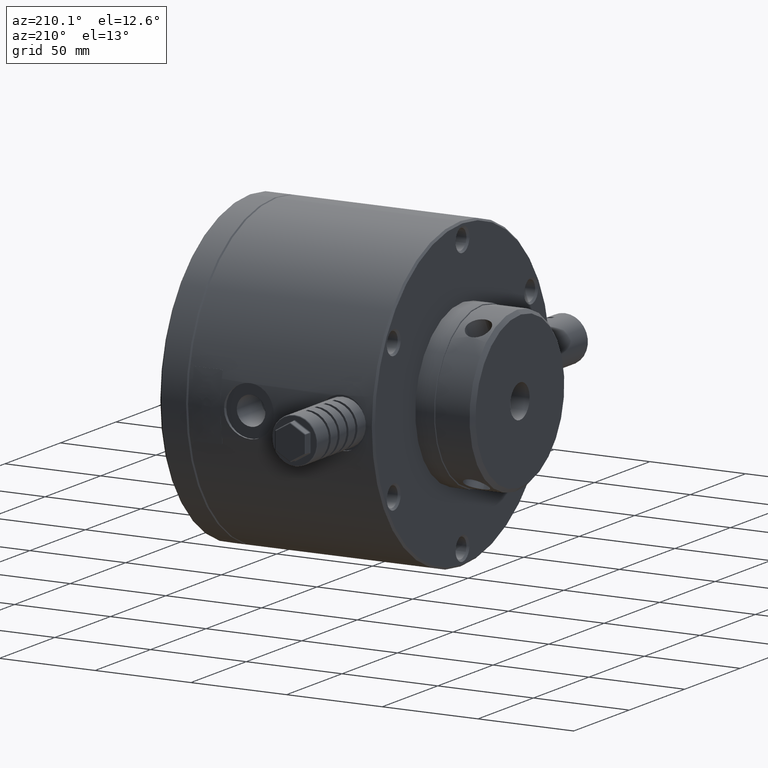
[diagram: clean part render]
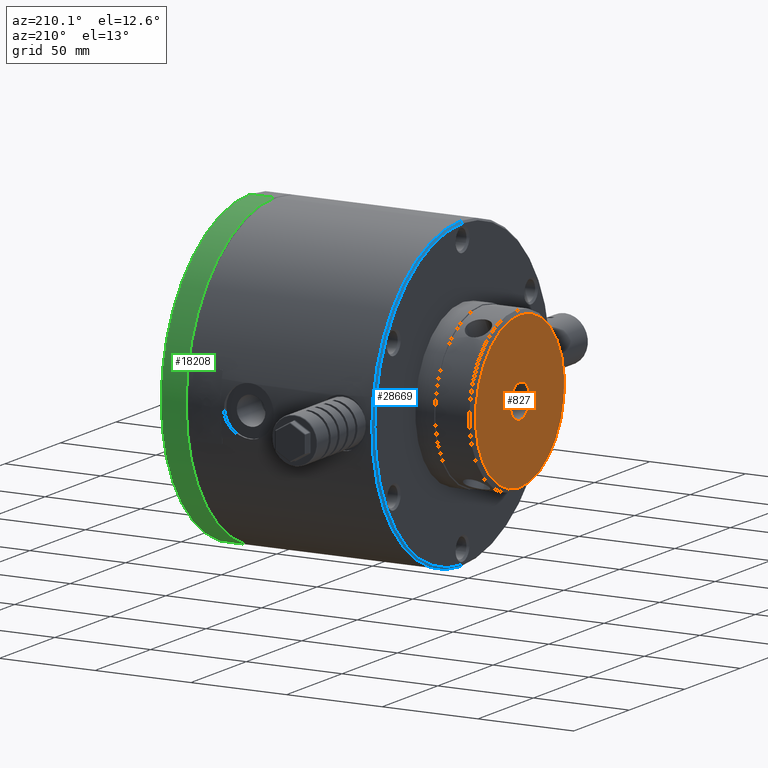
[diagram: same view with three faces highlighted in distinct colors, each labeled with its STEP entity id]
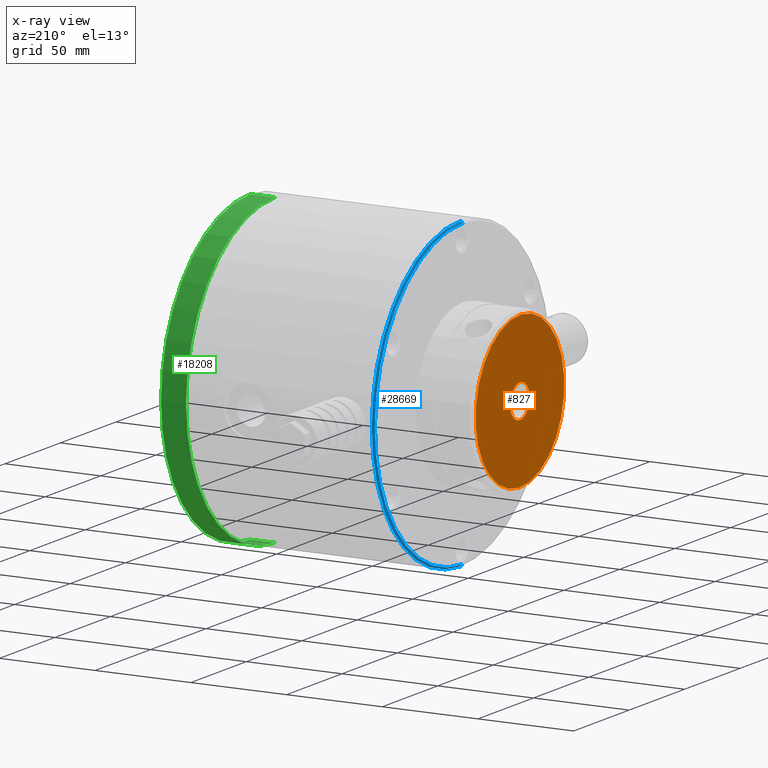
[diagram: x-ray of the same camera — body ghosted, the three highlighted faces saturated]
A machine part, auxiliary view with three faces highlighted in distinct colors.
The next image is the same camera in x-ray (body ghosted, the three faces saturated) — at least one of them is partly hidden behind the body in this view.
Their STEP definitions:

[orange] entity #827 — the highlighted planar face has unit normal (-1, 0, 0).
#732 = DIRECTION ( 'NONE',  ( -1.000000000000000000, 0.0000000000000000000, 0.0000000000000000000 ) ) ;
#827 = ADVANCED_FACE ( 'NONE', ( #27871, #27100 ), #28862, .T. ) ;
#1956 = DIRECTION ( 'NONE',  ( 0.0000000000000000000, 0.02344010353310653800, -0.9997252430274816700 ) ) ;
#1974 = CARTESIAN_POINT ( 'NONE',  ( -127.0000000000000000, -0.9376041413242524000, 39.98900972109924400 ) ) ;
#4192 = AXIS2_PLACEMENT_3D ( 'NONE', #26082, #21344, #1956 ) ;
#4431 = VERTEX_POINT ( 'NONE', #31360 ) ;
#5055 = AXIS2_PLACEMENT_3D ( 'NONE', #12788, #732, #10453 ) ;
#6025 = CIRCLE ( 'NONE', #16751, 40.00000000000002100 ) ;
#6111 = EDGE_LOOP ( 'NONE', ( #10679, #31324 ) ) ;
#8759 = ORIENTED_EDGE ( 'NONE', *, *, #11207, .F. ) ;
#8873 = CARTESIAN_POINT ( 'NONE',  ( -127.0000000000000000, 0.9376041413242651700, -39.98900972109924400 ) ) ;
#9210 = VERTEX_POINT ( 'NONE', #16268 ) ;
#10181 = CIRCLE ( 'NONE', #4192, 8.750000000000005300 ) ;
#10453 = DIRECTION ( 'NONE',  ( 0.0000000000000000000, 0.02344010353310653800, -0.9997252430274815600 ) ) ;
#10679 = ORIENTED_EDGE ( 'NONE', *, *, #11679, .T. ) ;
#11207 = EDGE_CURVE ( 'NONE', #9210, #4431, #13268, .T. ) ;
#11679 = EDGE_CURVE ( 'NONE', #31302, #20930, #6025, .T. ) ;
#11952 = EDGE_CURVE ( 'NONE', #4431, #9210, #10181, .T. ) ;
#12788 = CARTESIAN_POINT ( 'NONE',  ( -127.0000000000000000, -41.98846020715420500, -0.9844843483904749400 ) ) ;
#13060 = CARTESIAN_POINT ( 'NONE',  ( -127.0000000000000000, 8.935508208782470700E-015, 1.060877338640685800E-015 ) ) ;
#13268 = CIRCLE ( 'NONE', #18602, 8.750000000000005300 ) ;
#14494 = DIRECTION ( 'NONE',  ( 0.0000000000000000000, 0.02344010353310653500, -0.9997252430274816700 ) ) ;
#14945 = CIRCLE ( 'NONE', #17272, 40.00000000000002100 ) ;
#15085 = ORIENTED_EDGE ( 'NONE', *, *, #11952, .F. ) ;
#16268 = CARTESIAN_POINT ( 'NONE',  ( -127.0000000000000000, 0.2051009059146912700, -8.747595876490468200 ) ) ;
#16751 = AXIS2_PLACEMENT_3D ( 'NONE', #24863, #28347, #14494 ) ;
#17272 = AXIS2_PLACEMENT_3D ( 'NONE', #13060, #27421, #22685 ) ;
#18602 = AXIS2_PLACEMENT_3D ( 'NONE', #18836, #30126, #18942 ) ;
#18836 = CARTESIAN_POINT ( 'NONE',  ( -127.0000000000000000, 8.935508208782470700E-015, 1.060877338640685800E-015 ) ) ;
#18942 = DIRECTION ( 'NONE',  ( 0.0000000000000000000, 0.02344010353310653800, -0.9997252430274816700 ) ) ;
#19936 = EDGE_CURVE ( 'NONE', #20930, #31302, #14945, .T. ) ;
#20930 = VERTEX_POINT ( 'NONE', #8873 ) ;
#21344 = DIRECTION ( 'NONE',  ( -1.000000000000000000, 0.0000000000000000000, 0.0000000000000000000 ) ) ;
#22685 = DIRECTION ( 'NONE',  ( 0.0000000000000000000, 0.02344010353310653500, -0.9997252430274816700 ) ) ;
#24863 = CARTESIAN_POINT ( 'NONE',  ( -127.0000000000000000, 8.935508208782470700E-015, 1.060877338640685800E-015 ) ) ;
#26082 = CARTESIAN_POINT ( 'NONE',  ( -127.0000000000000000, 8.935508208782470700E-015, 1.060877338640685800E-015 ) ) ;
#26829 = EDGE_LOOP ( 'NONE', ( #8759, #15085 ) ) ;
#27100 = FACE_BOUND ( 'NONE', #26829, .T. ) ;
#27421 = DIRECTION ( 'NONE',  ( -1.000000000000000000, 0.0000000000000000000, 0.0000000000000000000 ) ) ;
#27871 = FACE_OUTER_BOUND ( 'NONE', #6111, .T. ) ;
#28347 = DIRECTION ( 'NONE',  ( -1.000000000000000000, 0.0000000000000000000, 0.0000000000000000000 ) ) ;
#28862 = PLANE ( 'NONE',  #5055 ) ;
#30126 = DIRECTION ( 'NONE',  ( -1.000000000000000000, 0.0000000000000000000, 0.0000000000000000000 ) ) ;
#31302 = VERTEX_POINT ( 'NONE', #1974 ) ;
#31324 = ORIENTED_EDGE ( 'NONE', *, *, #19936, .T. ) ;
#31360 = CARTESIAN_POINT ( 'NONE',  ( -127.0000000000000000, -0.2051009059146743600, 8.747595876490468200 ) ) ;

[blue] entity #28669 — the highlighted conical surface has half-angle 45 deg.
#1019 = AXIS2_PLACEMENT_3D ( 'NONE', #24324, #22016, #12678 ) ;
#1955 = EDGE_CURVE ( 'NONE', #30992, #16031, #8165, .T. ) ;
#2703 = CARTESIAN_POINT ( 'NONE',  ( -96.00000000000000000, 0.0000000000000000000, -80.00000000000000000 ) ) ;
#2946 = CARTESIAN_POINT ( 'NONE',  ( -97.00000000000000000, 0.0000000000000000000, -79.00000000000000000 ) ) ;
#4582 = LINE ( 'NONE', #22893, #29554 ) ;
#5351 = VECTOR ( 'NONE', #18119, 1000.000000000000100 ) ;
#6109 = EDGE_CURVE ( 'NONE', #30992, #19127, #4582, .T. ) ;
#6424 = CARTESIAN_POINT ( 'NONE',  ( -96.00000000000000000, 0.0000000000000000000, 0.0000000000000000000 ) ) ;
#6813 = ORIENTED_EDGE ( 'NONE', *, *, #1955, .F. ) ;
#8165 = CIRCLE ( 'NONE', #1019, 79.00000000000000000 ) ;
#8218 = ORIENTED_EDGE ( 'NONE', *, *, #30494, .F. ) ;
#8849 = DIRECTION ( 'NONE',  ( 1.000000000000000000, 0.0000000000000000000, 0.0000000000000000000 ) ) ;
#9198 = CARTESIAN_POINT ( 'NONE',  ( -96.00000000000000000, 9.797174393178826100E-015, 80.00000000000000000 ) ) ;
#11345 = AXIS2_PLACEMENT_3D ( 'NONE', #6424, #8849, #20822 ) ;
#12503 = CARTESIAN_POINT ( 'NONE',  ( -97.00000000000000000, 9.735942053221458500E-015, 79.00000000000000000 ) ) ;
#12678 = DIRECTION ( 'NONE',  ( 0.0000000000000000000, 0.0000000000000000000, -1.000000000000000000 ) ) ;
#15145 = CIRCLE ( 'NONE', #24351, 80.00000000000000000 ) ;
#16031 = VERTEX_POINT ( 'NONE', #2946 ) ;
#16344 = VERTEX_POINT ( 'NONE', #2703 ) ;
#16434 = DIRECTION ( 'NONE',  ( 0.0000000000000000000, 0.0000000000000000000, -1.000000000000000000 ) ) ;
#16957 = EDGE_LOOP ( 'NONE', ( #6813, #20195, #8218, #24956 ) ) ;
#18119 = DIRECTION ( 'NONE',  ( 0.7071067811865474600, 0.0000000000000000000, -0.7071067811865474600 ) ) ;
#19127 = VERTEX_POINT ( 'NONE', #9198 ) ;
#20195 = ORIENTED_EDGE ( 'NONE', *, *, #6109, .T. ) ;
#20822 = DIRECTION ( 'NONE',  ( 0.0000000000000000000, 0.0000000000000000000, -1.000000000000000000 ) ) ;
#22016 = DIRECTION ( 'NONE',  ( -1.000000000000000000, -0.0000000000000000000, -0.0000000000000000000 ) ) ;
#22377 = LINE ( 'NONE', #22872, #5351 ) ;
#22872 = CARTESIAN_POINT ( 'NONE',  ( -96.00000000000000000, 0.0000000000000000000, -80.00000000000000000 ) ) ;
#22893 = CARTESIAN_POINT ( 'NONE',  ( -96.00000000000000000, 9.797174393178826100E-015, 80.00000000000000000 ) ) ;
#24324 = CARTESIAN_POINT ( 'NONE',  ( -97.00000000000000000, 0.0000000000000000000, 0.0000000000000000000 ) ) ;
#24351 = AXIS2_PLACEMENT_3D ( 'NONE', #28364, #28670, #16434 ) ;
#24956 = ORIENTED_EDGE ( 'NONE', *, *, #29825, .F. ) ;
#25288 = DIRECTION ( 'NONE',  ( 0.7071067811865474600, 8.659560562354931600E-017, 0.7071067811865474600 ) ) ;
#26230 = FACE_OUTER_BOUND ( 'NONE', #16957, .T. ) ;
#28364 = CARTESIAN_POINT ( 'NONE',  ( -96.00000000000000000, 0.0000000000000000000, 0.0000000000000000000 ) ) ;
#28669 = ADVANCED_FACE ( 'NONE', ( #26230 ), #30406, .T. ) ;
#28670 = DIRECTION ( 'NONE',  ( 1.000000000000000000, 0.0000000000000000000, 0.0000000000000000000 ) ) ;
#29554 = VECTOR ( 'NONE', #25288, 1000.000000000000100 ) ;
#29825 = EDGE_CURVE ( 'NONE', #16031, #16344, #22377, .T. ) ;
#30406 = CONICAL_SURFACE ( 'NONE', #11345, 80.00000000000000000, 0.7853981633974482800 ) ;
#30494 = EDGE_CURVE ( 'NONE', #16344, #19127, #15145, .T. ) ;
#30992 = VERTEX_POINT ( 'NONE', #12503 ) ;

[green] entity #18208 — the highlighted cylindrical surface (partial cylindrical patch) has radius 80 mm, axis along (1, 0, 0).
#821 = DIRECTION ( 'NONE',  ( 0.0000000000000000000, 0.0000000000000000000, -1.000000000000000000 ) ) ;
#2805 = DIRECTION ( 'NONE',  ( 1.000000000000000000, 0.0000000000000000000, 0.0000000000000000000 ) ) ;
#3316 = DIRECTION ( 'NONE',  ( 0.0000000000000000000, 0.0000000000000000000, -1.000000000000000000 ) ) ;
#4920 = EDGE_LOOP ( 'NONE', ( #30627, #22035, #12373, #5745 ) ) ;
#5144 = DIRECTION ( 'NONE',  ( 1.000000000000000000, 0.0000000000000000000, 0.0000000000000000000 ) ) ;
#5422 = CARTESIAN_POINT ( 'NONE',  ( 1.000000000000000000, 9.797174393178826100E-015, 80.00000000000000000 ) ) ;
#5745 = ORIENTED_EDGE ( 'NONE', *, *, #9484, .F. ) ;
#6914 = VECTOR ( 'NONE', #5144, 1000.000000000000000 ) ;
#6953 = CARTESIAN_POINT ( 'NONE',  ( 1.000000000000000000, 0.0000000000000000000, -80.00000000000000000 ) ) ;
#8331 = VERTEX_POINT ( 'NONE', #11029 ) ;
#9484 = EDGE_CURVE ( 'NONE', #17227, #8331, #10294, .T. ) ;
#10294 = LINE ( 'NONE', #28812, #6914 ) ;
#11029 = CARTESIAN_POINT ( 'NONE',  ( 14.00000000000000000, 0.0000000000000000000, -80.00000000000000000 ) ) ;
#11065 = DIRECTION ( 'NONE',  ( -1.000000000000000000, -0.0000000000000000000, -0.0000000000000000000 ) ) ;
#11243 = AXIS2_PLACEMENT_3D ( 'NONE', #20988, #14081, #31014 ) ;
#12373 = ORIENTED_EDGE ( 'NONE', *, *, #22655, .T. ) ;
#12744 = FACE_OUTER_BOUND ( 'NONE', #4920, .T. ) ;
#13372 = DIRECTION ( 'NONE',  ( 1.000000000000000000, 0.0000000000000000000, 0.0000000000000000000 ) ) ;
#14081 = DIRECTION ( 'NONE',  ( 1.000000000000000000, 0.0000000000000000000, 0.0000000000000000000 ) ) ;
#16657 = LINE ( 'NONE', #27734, #27233 ) ;
#17227 = VERTEX_POINT ( 'NONE', #6953 ) ;
#17275 = AXIS2_PLACEMENT_3D ( 'NONE', #24701, #2805, #821 ) ;
#18208 = ADVANCED_FACE ( 'NONE', ( #12744 ), #24466, .T. ) ;
#20988 = CARTESIAN_POINT ( 'NONE',  ( 1.000000000000000000, 0.0000000000000000000, 0.0000000000000000000 ) ) ;
#22035 = ORIENTED_EDGE ( 'NONE', *, *, #23257, .T. ) ;
#22655 = EDGE_CURVE ( 'NONE', #25154, #8331, #24980, .T. ) ;
#23257 = EDGE_CURVE ( 'NONE', #29608, #25154, #16657, .T. ) ;
#23355 = EDGE_CURVE ( 'NONE', #17227, #29608, #28362, .T. ) ;
#24466 = CYLINDRICAL_SURFACE ( 'NONE', #17275, 80.00000000000000000 ) ;
#24701 = CARTESIAN_POINT ( 'NONE',  ( 0.0000000000000000000, 0.0000000000000000000, 0.0000000000000000000 ) ) ;
#24980 = CIRCLE ( 'NONE', #26431, 80.00000000000000000 ) ;
#25154 = VERTEX_POINT ( 'NONE', #26635 ) ;
#26431 = AXIS2_PLACEMENT_3D ( 'NONE', #29764, #11065, #3316 ) ;
#26635 = CARTESIAN_POINT ( 'NONE',  ( 14.00000000000000000, 9.797174393178826100E-015, 80.00000000000000000 ) ) ;
#27233 = VECTOR ( 'NONE', #13372, 1000.000000000000000 ) ;
#27734 = CARTESIAN_POINT ( 'NONE',  ( 0.0000000000000000000, 9.797174393178826100E-015, 80.00000000000000000 ) ) ;
#28362 = CIRCLE ( 'NONE', #11243, 80.00000000000000000 ) ;
#28812 = CARTESIAN_POINT ( 'NONE',  ( 0.0000000000000000000, 0.0000000000000000000, -80.00000000000000000 ) ) ;
#29608 = VERTEX_POINT ( 'NONE', #5422 ) ;
#29764 = CARTESIAN_POINT ( 'NONE',  ( 14.00000000000000000, 0.0000000000000000000, 0.0000000000000000000 ) ) ;
#30627 = ORIENTED_EDGE ( 'NONE', *, *, #23355, .T. ) ;
#31014 = DIRECTION ( 'NONE',  ( 0.0000000000000000000, 0.0000000000000000000, -1.000000000000000000 ) ) ;